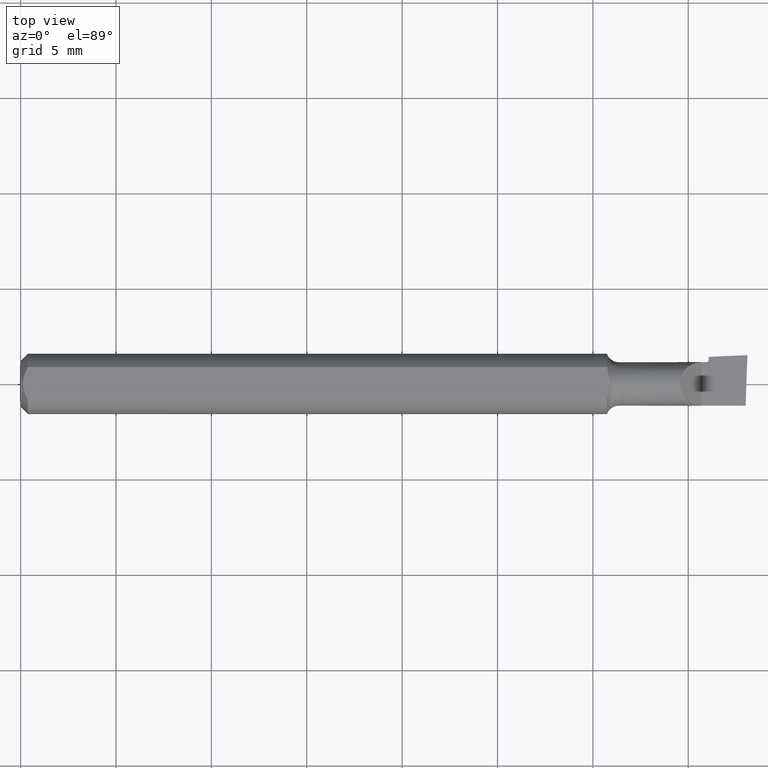
[diagram: clean part render]
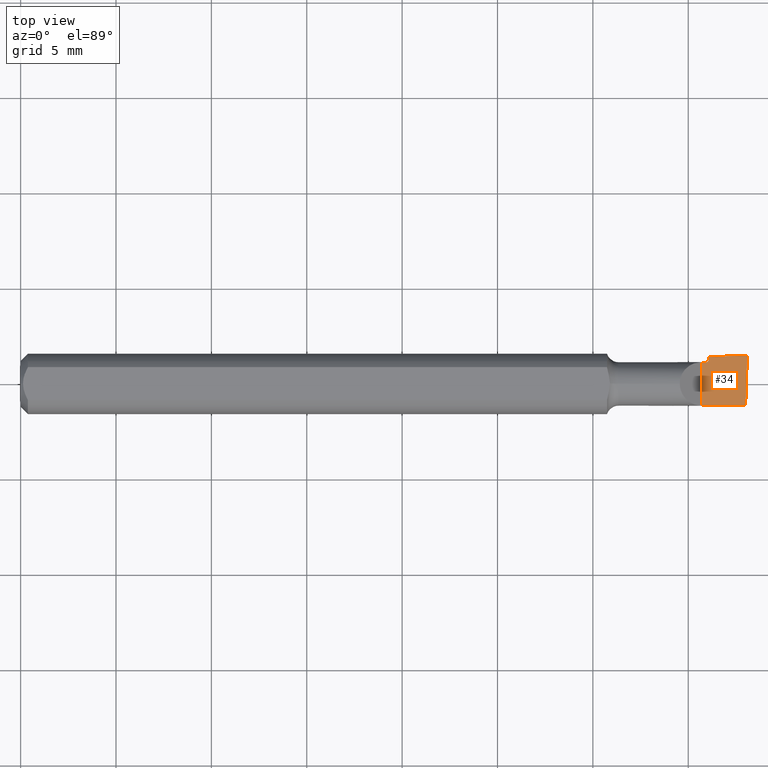
[diagram: same view with one face highlighted and labeled with its STEP entity id]
A machine part, top view. The second image highlights one B-rep face of the part: STEP entity #34.
In plain terms, the highlighted planar face has unit normal (-0, 0, -1).
Its self-contained STEP definition (entity closure, byte-faithful):
#5 = CARTESIAN_POINT ( 'NONE',  ( 1.405000000000000249, -0.04499999999999999833, -1.868634782302818344E-17 ) ) ;
#9 = ORIENTED_EDGE ( 'NONE', *, *, #466, .T. ) ;
#34 = ADVANCED_FACE ( 'NONE', ( #252 ), #149, .F. ) ;
#35 = DIRECTION ( 'NONE',  ( 1.000000000000000000, 0.000000000000000000, 0.000000000000000000 ) ) ;
#41 = VERTEX_POINT ( 'NONE', #437 ) ;
#48 = CARTESIAN_POINT ( 'NONE',  ( 1.497408718177534404, 0.05935011133167062553, -1.920830620545185230E-17 ) ) ;
#64 = LINE ( 'NONE', #478, #393 ) ;
#72 = VECTOR ( 'NONE', #335, 39.37007874015748143 ) ;
#81 = CARTESIAN_POINT ( 'NONE',  ( 1.405000000000000249, 0.04499999999999999833, -1.868634782302818344E-17 ) ) ;
#87 = LINE ( 'NONE', #447, #114 ) ;
#114 = VECTOR ( 'NONE', #503, 39.37007874015748143 ) ;
#122 = ORIENTED_EDGE ( 'NONE', *, *, #365, .F. ) ;
#128 = ORIENTED_EDGE ( 'NONE', *, *, #619, .F. ) ;
#142 = DIRECTION ( 'NONE',  ( -1.000000000000000000, 0.000000000000000000, 0.000000000000000000 ) ) ;
#149 = PLANE ( 'NONE',  #520 ) ;
#155 = LINE ( 'NONE', #398, #287 ) ;
#168 = VERTEX_POINT ( 'NONE', #81 ) ;
#183 = ORIENTED_EDGE ( 'NONE', *, *, #345, .T. ) ;
#187 = DIRECTION ( 'NONE',  ( -0.000000000000000000, -0.000000000000000000, -1.000000000000000000 ) ) ;
#195 = CARTESIAN_POINT ( 'NONE',  ( 0.000000000000000000, 0.04499999999999999833, -1.868634782302818344E-17 ) ) ;
#206 = DIRECTION ( 'NONE',  ( -1.000000000000000000, 0.000000000000000000, 0.000000000000000000 ) ) ;
#236 = DIRECTION ( 'NONE',  ( 0.03476711780021052994, 0.9993954410141494549, 0.000000000000000000 ) ) ;
#245 = DIRECTION ( 'NONE',  ( -0.000000000000000000, 0.000000000000000000, -1.000000000000000000 ) ) ;
#251 = DIRECTION ( 'NONE',  ( -0.000000000000000000, 1.000000000000000000, -0.000000000000000000 ) ) ;
#252 = FACE_OUTER_BOUND ( 'NONE', #501, .T. ) ;
#270 = ORIENTED_EDGE ( 'NONE', *, *, #326, .T. ) ;
#287 = VECTOR ( 'NONE', #586, 39.37007874015748143 ) ;
#288 = EDGE_CURVE ( 'NONE', #426, #41, #87, .T. ) ;
#297 = CARTESIAN_POINT ( 'NONE',  ( 1.415000000000000036, 0.04499999999999999833, -1.868634782302818344E-17 ) ) ;
#315 = VERTEX_POINT ( 'NONE', #567 ) ;
#318 = VECTOR ( 'NONE', #35, 39.37007874015748143 ) ;
#326 = EDGE_CURVE ( 'NONE', #426, #556, #349, .T. ) ;
#329 = LINE ( 'NONE', #516, #499 ) ;
#335 = DIRECTION ( 'NONE',  ( -0.9990482215818576872, -0.04361938736533620825, 0.000000000000000000 ) ) ;
#342 = CARTESIAN_POINT ( 'NONE',  ( 1.405000000000000249, 0.07629532499999999717, -1.868634782302818344E-17 ) ) ;
#345 = EDGE_CURVE ( 'NONE', #315, #521, #329, .T. ) ;
#349 = CIRCLE ( 'NONE', #375, 0.005000000000000083371 ) ;
#365 = EDGE_CURVE ( 'NONE', #168, #556, #610, .T. ) ;
#375 = AXIS2_PLACEMENT_3D ( 'NONE', #559, #187, #142 ) ;
#379 = CARTESIAN_POINT ( 'NONE',  ( 1.420000000000000151, 0.04999999999999999584, -1.868634782302818344E-17 ) ) ;
#393 = VECTOR ( 'NONE', #251, 39.37007874015748143 ) ;
#398 = CARTESIAN_POINT ( 'NONE',  ( 0.000000000000000000, -0.04499999999999999833, -1.868634782302818344E-17 ) ) ;
#418 = ORIENTED_EDGE ( 'NONE', *, *, #288, .F. ) ;
#426 = VERTEX_POINT ( 'NONE', #379 ) ;
#437 = CARTESIAN_POINT ( 'NONE',  ( 1.420000000000000151, 0.05597037370670018830, -1.894732701424001633E-17 ) ) ;
#447 = CARTESIAN_POINT ( 'NONE',  ( 1.420000000000000151, 0.07629532499999999717, -1.868634782302818344E-17 ) ) ;
#466 = EDGE_CURVE ( 'NONE', #521, #41, #620, .T. ) ;
#478 = CARTESIAN_POINT ( 'NONE',  ( 1.405000000000000249, 0.07629532499999999717, -1.868634782302818344E-17 ) ) ;
#499 = VECTOR ( 'NONE', #236, 39.37007874015748854 ) ;
#501 = EDGE_LOOP ( 'NONE', ( #183, #9, #418, #270, #122, #574, #128 ) ) ;
#503 = DIRECTION ( 'NONE',  ( 0.000000000000000000, 1.000000000000000000, 0.000000000000000000 ) ) ;
#516 = CARTESIAN_POINT ( 'NONE',  ( 1.500451367490510224, 0.07297474857795209491, -1.868634782302818344E-17 ) ) ;
#520 = AXIS2_PLACEMENT_3D ( 'NONE', #342, #245, #206 ) ;
#521 = VERTEX_POINT ( 'NONE', #534 ) ;
#534 = CARTESIAN_POINT ( 'NONE',  ( 1.499981299026331705, 0.05946243263723752226, -1.868634782302818344E-17 ) ) ;
#556 = VERTEX_POINT ( 'NONE', #297 ) ;
#559 = CARTESIAN_POINT ( 'NONE',  ( 1.415000000000000036, 0.04999999999999999584, 0.000000000000000000 ) ) ;
#567 = CARTESIAN_POINT ( 'NONE',  ( 1.496347244324711223, -0.04500000000000000527, -6.829619984160658046E-17 ) ) ;
#574 = ORIENTED_EDGE ( 'NONE', *, *, #577, .F. ) ;
#577 = EDGE_CURVE ( 'NONE', #609, #168, #64, .T. ) ;
#586 = DIRECTION ( 'NONE',  ( -1.000000000000000000, -0.000000000000000000, -0.000000000000000000 ) ) ;
#609 = VERTEX_POINT ( 'NONE', #5 ) ;
#610 = LINE ( 'NONE', #195, #318 ) ;
#619 = EDGE_CURVE ( 'NONE', #315, #609, #155, .T. ) ;
#620 = LINE ( 'NONE', #48, #72 ) ;